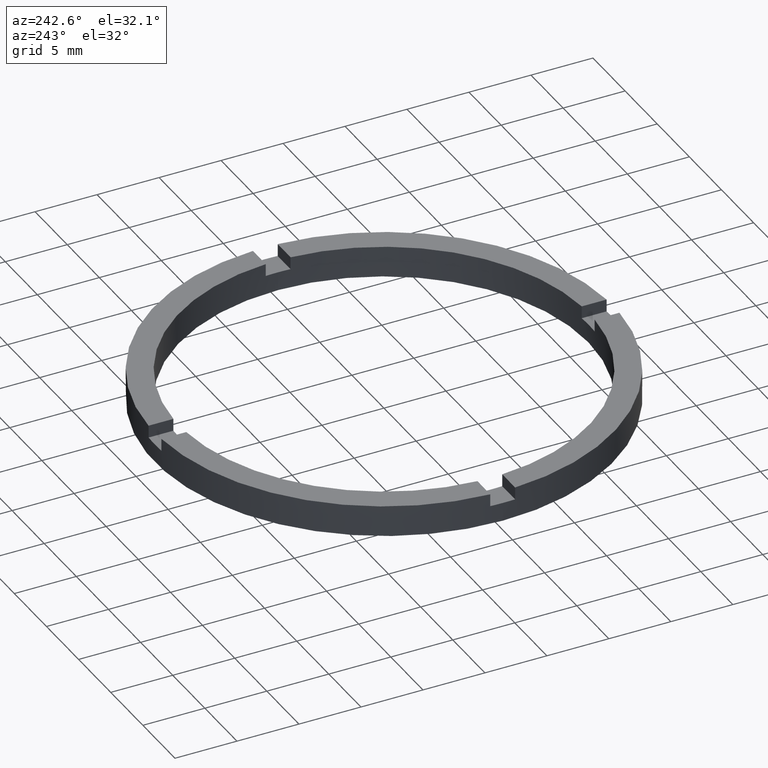
[diagram: clean part render]
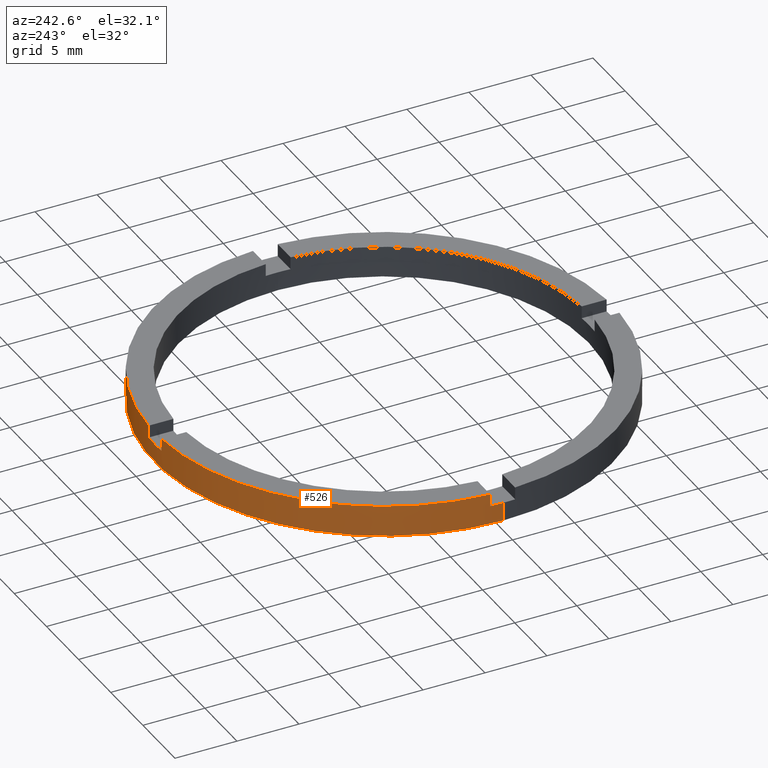
[diagram: same view with one face highlighted and labeled with its STEP entity id]
A machine part, auxiliary view. The second image highlights one B-rep face of the part: STEP entity #526.
In plain terms, the highlighted cylindrical surface (partial cylindrical patch) has radius 18.5 mm, axis along (-0, -0, -1).
Its self-contained STEP definition (entity closure, byte-faithful):
#5 = AXIS2_PLACEMENT_3D ( 'NONE', #189, #531, #418 ) ;
#11 = CARTESIAN_POINT ( 'NONE',  ( 0.000000000000000000, 0.000000000000000000, 0.000000000000000000 ) ) ;
#14 = CARTESIAN_POINT ( 'NONE',  ( 0.9999999999999733546, 18.47295320191116375, 1.500000000000000000 ) ) ;
#19 = DIRECTION ( 'NONE',  ( 0.000000000000000000, 0.000000000000000000, 1.000000000000000000 ) ) ;
#31 = DIRECTION ( 'NONE',  ( 1.000000000000000000, 0.000000000000000000, 0.000000000000000000 ) ) ;
#45 = CARTESIAN_POINT ( 'NONE',  ( 0.9999999999999733546, 18.47295320191116375, 2.500000000000000000 ) ) ;
#50 = AXIS2_PLACEMENT_3D ( 'NONE', #11, #275, #646 ) ;
#51 = DIRECTION ( 'NONE',  ( 0.000000000000000000, 0.000000000000000000, 1.000000000000000000 ) ) ;
#53 = CARTESIAN_POINT ( 'NONE',  ( -18.50000000000000000, 0.000000000000000000, 1.500000000000000000 ) ) ;
#68 = VERTEX_POINT ( 'NONE', #530 ) ;
#76 = ORIENTED_EDGE ( 'NONE', *, *, #696, .F. ) ;
#84 = VERTEX_POINT ( 'NONE', #781 ) ;
#98 = VERTEX_POINT ( 'NONE', #429 ) ;
#104 = ORIENTED_EDGE ( 'NONE', *, *, #425, .T. ) ;
#111 = ORIENTED_EDGE ( 'NONE', *, *, #769, .T. ) ;
#115 = CARTESIAN_POINT ( 'NONE',  ( -18.47295320191116375, 0.9999999999999746869, 1.500000000000000000 ) ) ;
#116 = EDGE_CURVE ( 'NONE', #604, #350, #726, .T. ) ;
#120 = LINE ( 'NONE', #135, #671 ) ;
#125 = ORIENTED_EDGE ( 'NONE', *, *, #518, .F. ) ;
#135 = CARTESIAN_POINT ( 'NONE',  ( 18.50000000000000000, 2.265596578422603396E-15, 2.500000000000000000 ) ) ;
#137 = FACE_OUTER_BOUND ( 'NONE', #386, .T. ) ;
#144 = VECTOR ( 'NONE', #573, 1000.000000000000000 ) ;
#150 = CYLINDRICAL_SURFACE ( 'NONE', #177, 18.50000000000000000 ) ;
#164 = CIRCLE ( 'NONE', #5, 18.50000000000000000 ) ;
#167 = VERTEX_POINT ( 'NONE', #285 ) ;
#170 = CIRCLE ( 'NONE', #733, 18.50000000000000000 ) ;
#177 = AXIS2_PLACEMENT_3D ( 'NONE', #484, #181, #399 ) ;
#181 = DIRECTION ( 'NONE',  ( -0.000000000000000000, -0.000000000000000000, -1.000000000000000000 ) ) ;
#189 = CARTESIAN_POINT ( 'NONE',  ( 0.000000000000000000, 0.000000000000000000, 1.500000000000000000 ) ) ;
#194 = LINE ( 'NONE', #549, #447 ) ;
#213 = DIRECTION ( 'NONE',  ( 1.000000000000000000, 0.000000000000000000, 0.000000000000000000 ) ) ;
#229 = DIRECTION ( 'NONE',  ( 0.000000000000000000, 0.000000000000000000, 1.000000000000000000 ) ) ;
#253 = EDGE_CURVE ( 'NONE', #459, #621, #649, .T. ) ;
#259 = EDGE_CURVE ( 'NONE', #167, #588, #665, .T. ) ;
#263 = CARTESIAN_POINT ( 'NONE',  ( -18.47295320191116375, 0.9999999999999746869, 2.500000000000000000 ) ) ;
#269 = DIRECTION ( 'NONE',  ( 1.000000000000000000, 0.000000000000000000, 0.000000000000000000 ) ) ;
#275 = DIRECTION ( 'NONE',  ( 0.000000000000000000, 0.000000000000000000, 1.000000000000000000 ) ) ;
#283 = CARTESIAN_POINT ( 'NONE',  ( 18.47295320191117085, 0.9999999999998427924, 1.500000000000000000 ) ) ;
#285 = CARTESIAN_POINT ( 'NONE',  ( 18.50000000000000000, 2.265596578422603396E-15, 1.500000000000000000 ) ) ;
#288 = CARTESIAN_POINT ( 'NONE',  ( 0.9999999999999733546, 18.47295320191116375, 2.500000000000000000 ) ) ;
#299 = EDGE_CURVE ( 'NONE', #311, #350, #403, .T. ) ;
#311 = VERTEX_POINT ( 'NONE', #53 ) ;
#321 = DIRECTION ( 'NONE',  ( -0.000000000000000000, -0.000000000000000000, -1.000000000000000000 ) ) ;
#335 = CARTESIAN_POINT ( 'NONE',  ( 0.000000000000000000, 0.000000000000000000, 1.500000000000000000 ) ) ;
#341 = DIRECTION ( 'NONE',  ( 0.000000000000000000, 0.000000000000000000, 1.000000000000000000 ) ) ;
#350 = VERTEX_POINT ( 'NONE', #520 ) ;
#352 = ORIENTED_EDGE ( 'NONE', *, *, #299, .F. ) ;
#356 = DIRECTION ( 'NONE',  ( 1.000000000000000000, 0.000000000000000000, 0.000000000000000000 ) ) ;
#362 = CARTESIAN_POINT ( 'NONE',  ( 18.47295320191117085, 0.9999999999998427924, 2.500000000000000000 ) ) ;
#375 = LINE ( 'NONE', #362, #677 ) ;
#380 = CIRCLE ( 'NONE', #767, 18.50000000000000000 ) ;
#381 = VECTOR ( 'NONE', #19, 1000.000000000000000 ) ;
#383 = AXIS2_PLACEMENT_3D ( 'NONE', #335, #341, #213 ) ;
#386 = EDGE_LOOP ( 'NONE', ( #766, #104, #633, #352, #768, #776, #510, #111, #76, #663, #125, #422 ) ) ;
#399 = DIRECTION ( 'NONE',  ( -1.000000000000000000, 0.000000000000000000, 0.000000000000000000 ) ) ;
#403 = LINE ( 'NONE', #534, #144 ) ;
#418 = DIRECTION ( 'NONE',  ( 1.000000000000000000, 0.000000000000000000, 0.000000000000000000 ) ) ;
#422 = ORIENTED_EDGE ( 'NONE', *, *, #466, .T. ) ;
#425 = EDGE_CURVE ( 'NONE', #167, #604, #120, .T. ) ;
#429 = CARTESIAN_POINT ( 'NONE',  ( 18.47295320191117085, 0.9999999999998427924, 2.500000000000000000 ) ) ;
#437 = LINE ( 'NONE', #568, #700 ) ;
#441 = EDGE_CURVE ( 'NONE', #592, #311, #656, .T. ) ;
#442 = CARTESIAN_POINT ( 'NONE',  ( 18.50000000000000000, 2.265596578422603396E-15, 0.000000000000000000 ) ) ;
#447 = VECTOR ( 'NONE', #489, 1000.000000000000000 ) ;
#459 = VERTEX_POINT ( 'NONE', #14 ) ;
#466 = EDGE_CURVE ( 'NONE', #98, #588, #375, .T. ) ;
#469 = DIRECTION ( 'NONE',  ( -0.000000000000000000, -0.000000000000000000, -1.000000000000000000 ) ) ;
#476 = DIRECTION ( 'NONE',  ( 0.000000000000000000, 0.000000000000000000, 1.000000000000000000 ) ) ;
#484 = CARTESIAN_POINT ( 'NONE',  ( 0.000000000000000000, 0.000000000000000000, 2.500000000000000000 ) ) ;
#489 = DIRECTION ( 'NONE',  ( -0.000000000000000000, -0.000000000000000000, -1.000000000000000000 ) ) ;
#510 = ORIENTED_EDGE ( 'NONE', *, *, #756, .F. ) ;
#518 = EDGE_CURVE ( 'NONE', #98, #621, #380, .T. ) ;
#520 = CARTESIAN_POINT ( 'NONE',  ( -18.50000000000000000, 0.000000000000000000, 0.000000000000000000 ) ) ;
#526 = ADVANCED_FACE ( 'NONE', ( #137 ), #150, .T. ) ;
#530 = CARTESIAN_POINT ( 'NONE',  ( -1.000000000000026645, 18.47295320191116019, 1.500000000000000000 ) ) ;
#531 = DIRECTION ( 'NONE',  ( 0.000000000000000000, -0.000000000000000000, 1.000000000000000000 ) ) ;
#534 = CARTESIAN_POINT ( 'NONE',  ( -18.50000000000000000, 0.000000000000000000, 2.500000000000000000 ) ) ;
#549 = CARTESIAN_POINT ( 'NONE',  ( -1.000000000000026645, 18.47295320191116019, 2.500000000000000000 ) ) ;
#553 = CARTESIAN_POINT ( 'NONE',  ( 0.000000000000000000, 0.000000000000000000, 2.500000000000000000 ) ) ;
#568 = CARTESIAN_POINT ( 'NONE',  ( -18.47295320191116375, 0.9999999999999746869, 2.500000000000000000 ) ) ;
#573 = DIRECTION ( 'NONE',  ( -0.000000000000000000, -0.000000000000000000, -1.000000000000000000 ) ) ;
#586 = VERTEX_POINT ( 'NONE', #263 ) ;
#588 = VERTEX_POINT ( 'NONE', #283 ) ;
#592 = VERTEX_POINT ( 'NONE', #115 ) ;
#604 = VERTEX_POINT ( 'NONE', #442 ) ;
#610 = CARTESIAN_POINT ( 'NONE',  ( 0.000000000000000000, 0.000000000000000000, 2.500000000000000000 ) ) ;
#621 = VERTEX_POINT ( 'NONE', #45 ) ;
#633 = ORIENTED_EDGE ( 'NONE', *, *, #116, .T. ) ;
#646 = DIRECTION ( 'NONE',  ( 1.000000000000000000, 0.000000000000000000, 0.000000000000000000 ) ) ;
#647 = DIRECTION ( 'NONE',  ( 0.000000000000000000, 0.000000000000000000, 1.000000000000000000 ) ) ;
#649 = LINE ( 'NONE', #288, #381 ) ;
#656 = CIRCLE ( 'NONE', #777, 18.50000000000000000 ) ;
#663 = ORIENTED_EDGE ( 'NONE', *, *, #253, .T. ) ;
#665 = CIRCLE ( 'NONE', #383, 18.50000000000000000 ) ;
#671 = VECTOR ( 'NONE', #321, 1000.000000000000000 ) ;
#677 = VECTOR ( 'NONE', #469, 1000.000000000000000 ) ;
#696 = EDGE_CURVE ( 'NONE', #459, #68, #164, .T. ) ;
#700 = VECTOR ( 'NONE', #647, 1000.000000000000000 ) ;
#715 = EDGE_CURVE ( 'NONE', #592, #586, #437, .T. ) ;
#726 = CIRCLE ( 'NONE', #50, 18.50000000000000000 ) ;
#733 = AXIS2_PLACEMENT_3D ( 'NONE', #610, #476, #269 ) ;
#754 = CARTESIAN_POINT ( 'NONE',  ( 0.000000000000000000, 0.000000000000000000, 1.500000000000000000 ) ) ;
#756 = EDGE_CURVE ( 'NONE', #84, #586, #170, .T. ) ;
#766 = ORIENTED_EDGE ( 'NONE', *, *, #259, .F. ) ;
#767 = AXIS2_PLACEMENT_3D ( 'NONE', #553, #229, #31 ) ;
#768 = ORIENTED_EDGE ( 'NONE', *, *, #441, .F. ) ;
#769 = EDGE_CURVE ( 'NONE', #84, #68, #194, .T. ) ;
#776 = ORIENTED_EDGE ( 'NONE', *, *, #715, .T. ) ;
#777 = AXIS2_PLACEMENT_3D ( 'NONE', #754, #51, #356 ) ;
#781 = CARTESIAN_POINT ( 'NONE',  ( -1.000000000000026645, 18.47295320191116019, 2.500000000000000000 ) ) ;